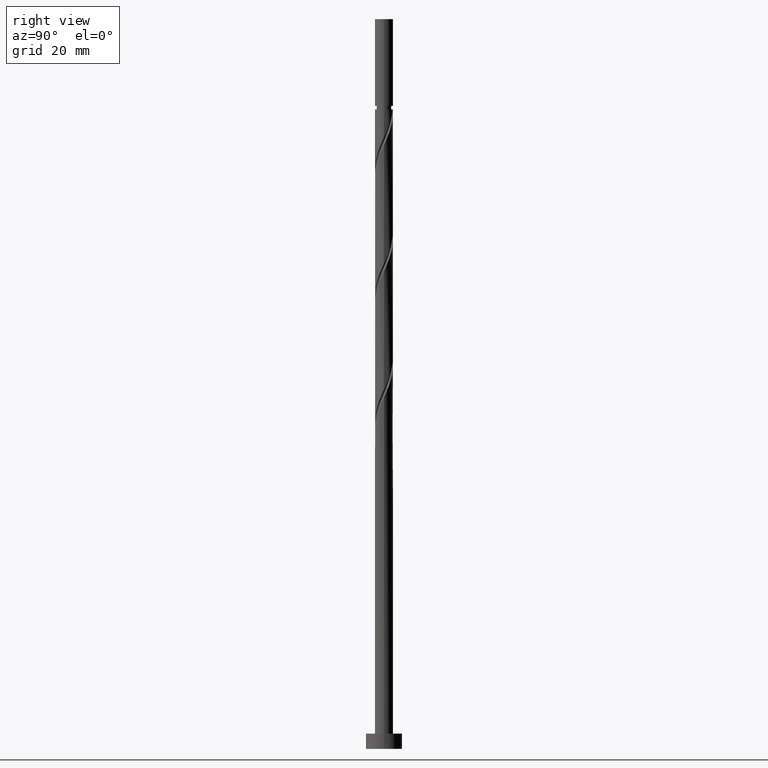
[diagram: clean part render]
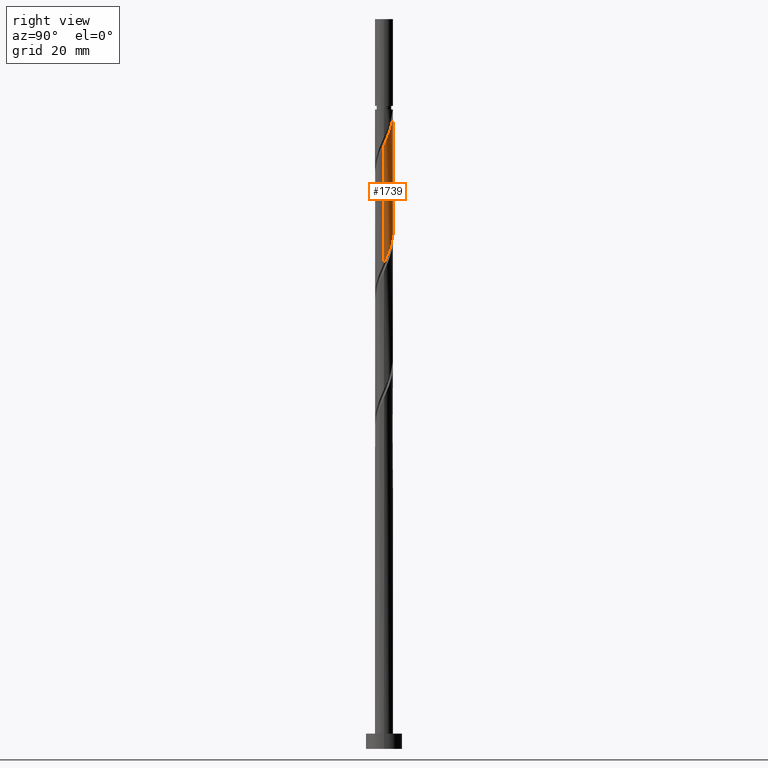
[diagram: same view with one face highlighted and labeled with its STEP entity id]
A machine part, right view. The second image highlights one B-rep face of the part: STEP entity #1739.
In plain terms, the highlighted cylindrical surface (edge-blend (fillet) strip) has radius 3 mm, axis along (-0, -0, -1).
Its self-contained STEP definition (entity closure, byte-faithful):
#7 = VERTEX_POINT ( 'NONE', #246 ) ;
#56 = CARTESIAN_POINT ( 'NONE',  ( 1.612492905673893251, 2.555886599839282347, 167.1045357383551675 ) ) ;
#71 = CARTESIAN_POINT ( 'NONE',  ( 2.960644198141480388, 0.4843407189274799851, 161.4955613793808027 ) ) ;
#83 = CARTESIAN_POINT ( 'NONE',  ( 2.901834587494009909, 0.8438280090812962930, 162.2968434306628751 ) ) ;
#92 = CARTESIAN_POINT ( 'NONE',  ( -2.846604600309526667, 0.9470175550097439388, 179.1237665075859695 ) ) ;
#101 = CARTESIAN_POINT ( 'NONE',  ( 2.731615850633954068, 1.292657931028937224, 202.3609459947654443 ) ) ;
#107 = CARTESIAN_POINT ( 'NONE',  ( 2.846604600309533772, 0.9470175550097428285, 201.5596639434834572 ) ) ;
#126 = CARTESIAN_POINT ( 'NONE',  ( 3.000000000000005329, 0.1193193910103004934, 199.6946309319424131 ) ) ;
#142 = DIRECTION ( 'NONE',  ( -0.000000000000000000, -0.000000000000000000, -1.000000000000000000 ) ) ;
#145 = ORIENTED_EDGE ( 'NONE', *, *, #348, .T. ) ;
#150 = CARTESIAN_POINT ( 'NONE',  ( 0.000000000000000000, 0.000000000000000000, 211.1750485588680135 ) ) ;
#188 = CARTESIAN_POINT ( 'NONE',  ( 0.5969924622639737333, 2.939999999999999503, 169.5083818922013279 ) ) ;
#196 = CARTESIAN_POINT ( 'NONE',  ( 2.615571287713475357, 1.513762372691140667, 163.8994075332270199 ) ) ;
#204 = CARTESIAN_POINT ( 'NONE',  ( -2.537251308848757603, 1.600736016882629453, 177.5212024050218247 ) ) ;
#246 = CARTESIAN_POINT ( 'NONE',  ( -2.999999999999987121, 0.000000000000000000, 211.1750485588680135 ) ) ;
#247 = CARTESIAN_POINT ( 'NONE',  ( 2.342886767063573128, 1.908814102736323237, 203.9635100973295323 ) ) ;
#249 = ORIENTED_EDGE ( 'NONE', *, *, #1171, .F. ) ;
#262 = CARTESIAN_POINT ( 'NONE',  ( 0.000000000000000000, 0.000000000000000000, 241.0000000000000000 ) ) ;
#273 = LINE ( 'NONE', #675, #561 ) ;
#322 = AXIS2_PLACEMENT_3D ( 'NONE', #262, #975, #815 ) ;
#344 = CARTESIAN_POINT ( 'NONE',  ( 2.177300491905830082, 2.095722369502523996, 165.5019716357910511 ) ) ;
#348 = EDGE_CURVE ( 'NONE', #1135, #1563, #966, .T. ) ;
#368 = CARTESIAN_POINT ( 'NONE',  ( 0.2400118315905271915, 3.012488008736831979, 170.3096639434834287 ) ) ;
#401 = CARTESIAN_POINT ( 'NONE',  ( -3.000000000000000000, -1.794712623994405280E-16, 181.2529704347598738 ) ) ;
#407 = AXIS2_PLACEMENT_3D ( 'NONE', #150, #142, #1837 ) ;
#467 = ORIENTED_EDGE ( 'NONE', *, *, #647, .F. ) ;
#479 = ORIENTED_EDGE ( 'NONE', *, *, #1495, .T. ) ;
#496 = CIRCLE ( 'NONE', #407, 2.999999999999987121 ) ;
#550 = CARTESIAN_POINT ( 'NONE',  ( 2.080442193850961186, 2.161425519892977931, 204.7647921486116616 ) ) ;
#559 = CARTESIAN_POINT ( 'NONE',  ( 0.4878980450008975067, 2.982389173091093859, 208.7712024050218815 ) ) ;
#561 = VECTOR ( 'NONE', #1242, 1000.000000000000000 ) ;
#569 = CARTESIAN_POINT ( 'NONE',  ( 3.000000000000004441, 2.422862042392428676E-15, 199.4304600163094676 ) ) ;
#595 =( BOUNDED_CURVE ( )  B_SPLINE_CURVE ( 2, ( #1486, #1765, #1630, #1327, #92, #651, #204, #784, #917, #1335, #1351, #1342, #803, #1751, #627, #368, #188, #1613, #1773, #56, #791, #344, #1366, #196, #944, #83, #71, #1225, #768 ),
 .UNSPECIFIED., .F., .T. ) 
 B_SPLINE_CURVE_WITH_KNOTS ( ( 3, 2, 2, 2, 2, 2, 2, 2, 2, 2, 2, 2, 2, 2, 3 ),
 ( 0.4295271625973829943, 0.4326923076923077094, 0.4423076923076922906, 0.4519230769230769273, 0.4615384615384615641, 0.4711538461538461453, 0.4807692307692307820, 0.4903846153846153633, 0.5000000000000000000, 0.5096153846153845812, 0.5192307692307692735, 0.5288461538461538547, 0.5384615384615384359, 0.5480769230769231282, 0.5545271625973834384 ),
 .UNSPECIFIED. ) 
 CURVE ( )  GEOMETRIC_REPRESENTATION_ITEM ( )  RATIONAL_B_SPLINE_CURVE ( ( 0.9061636035682814061, 0.9069090390690700554, 0.9090909090909268242, 0.9024626128164302541, 0.9090909090909268242, 0.9024626128164302541, 0.9090909090909268242, 0.9024626128164302541, 0.9090909090909268242, 0.9024626128164302541, 0.9090909090909268242, 0.9024626128164302541, 0.9090909090909268242, 0.9024626128164302541, 0.9090909090909268242, 0.9024626128164302541, 0.9090909090909268242, 0.9024626128164302541, 0.9090909090909268242, 0.9024626128164302541, 0.9090909090909268242, 0.9024626128164302541, 0.9090909090909268242, 0.9024626128164302541, 0.9090909090909268242, 0.9024626128164302541, 0.9090909090909268242, 0.9046444828382866898, 0.9061636035682816281 ) ) 
 REPRESENTATION_ITEM ( '' )  );
#627 = CARTESIAN_POINT ( 'NONE',  ( -0.1239431067051839502, 2.997438590913959366, 171.1109459947654159 ) ) ;
#647 = EDGE_CURVE ( 'NONE', #1257, #1563, #595, .T. ) ;
#651 = CARTESIAN_POINT ( 'NONE',  ( -2.731615850633947851, 1.292657931028936558, 178.3224844563039255 ) ) ;
#668 = CARTESIAN_POINT ( 'NONE',  ( -0.5969924622639475320, 2.940000000000004388, 211.1750485588678998 ) ) ;
#675 = CARTESIAN_POINT ( 'NONE',  ( -3.000000000000000444, 0.000000000000000000, 241.0000000000000000 ) ) ;
#755 = VERTEX_POINT ( 'NONE', #1646 ) ;
#768 = CARTESIAN_POINT ( 'NONE',  ( 2.999999999999999556, 4.531649375585872302E-15, 160.4196371014264741 ) ) ;
#784 = CARTESIAN_POINT ( 'NONE',  ( -2.342886767063567355, 1.908814102736321683, 176.7199203537398091 ) ) ;
#791 = CARTESIAN_POINT ( 'NONE',  ( 1.894896698789862555, 2.325804484670902283, 166.3032536870730951 ) ) ;
#803 = CARTESIAN_POINT ( 'NONE',  ( -0.8376755528274979490, 2.880676946169970165, 172.7135100973295039 ) ) ;
#815 = DIRECTION ( 'NONE',  ( -1.000000000000000000, 0.000000000000000000, 0.000000000000000000 ) ) ;
#819 = EDGE_CURVE ( 'NONE', #1135, #755, #1348, .T. ) ;
#824 = CYLINDRICAL_SURFACE ( 'NONE', #322, 3.000000000000000444 ) ;
#829 = CARTESIAN_POINT ( 'NONE',  ( 1.502725340646227536, 2.596500828149244544, 206.3673562511757211 ) ) ;
#917 = CARTESIAN_POINT ( 'NONE',  ( -2.080442193850956301, 2.161425519892975267, 175.9186383024576799 ) ) ;
#939 = CARTESIAN_POINT ( 'NONE',  ( 2.999999999999999556, 4.531649375585873091E-15, 160.4196371014264741 ) ) ;
#944 = CARTESIAN_POINT ( 'NONE',  ( 2.758702937603741745, 1.178795190886219535, 163.0981254819449191 ) ) ;
#966 = LINE ( 'NONE', #1522, #1227 ) ;
#975 = DIRECTION ( 'NONE',  ( -0.000000000000000000, -0.000000000000000000, -1.000000000000000000 ) ) ;
#1115 = CARTESIAN_POINT ( 'NONE',  ( 0.8376755528275019458, 2.880676946169974606, 207.9699203537398375 ) ) ;
#1135 = VERTEX_POINT ( 'NONE', #1196 ) ;
#1136 = CARTESIAN_POINT ( 'NONE',  ( 2.990523579387033948, 0.2382618751084423503, 199.9570998409193123 ) ) ;
#1171 = EDGE_CURVE ( 'NONE', #7, #1257, #273, .T. ) ;
#1196 = CARTESIAN_POINT ( 'NONE',  ( 3.000000000000004441, 2.422862042392428676E-15, 199.4304600163094676 ) ) ;
#1225 = CARTESIAN_POINT ( 'NONE',  ( 3.000000000000000888, 0.2437693156111304382, 160.9593378387748430 ) ) ;
#1227 = VECTOR ( 'NONE', #1795, 1000.000000000000000 ) ;
#1229 = FACE_OUTER_BOUND ( 'NONE', #1429, .T. ) ;
#1242 = DIRECTION ( 'NONE',  ( -0.000000000000000000, -0.000000000000000000, -1.000000000000000000 ) ) ;
#1245 = CARTESIAN_POINT ( 'NONE',  ( -0.2400118315905380717, 3.012488008736836420, 210.3737665075860548 ) ) ;
#1255 = CARTESIAN_POINT ( 'NONE',  ( 2.537251308848762932, 1.600736016882631230, 203.1622280460475167 ) ) ;
#1257 = VERTEX_POINT ( 'NONE', #401 ) ;
#1265 = CARTESIAN_POINT ( 'NONE',  ( 1.817997620638351242, 2.414036937049630183, 205.5660741998936203 ) ) ;
#1327 = CARTESIAN_POINT ( 'NONE',  ( -2.961593349985107260, 0.6013771789905504317, 179.9250485588679567 ) ) ;
#1329 = ORIENTED_EDGE ( 'NONE', *, *, #819, .F. ) ;
#1335 = CARTESIAN_POINT ( 'NONE',  ( -1.817997620638345913, 2.414036937049628850, 175.1173562511756359 ) ) ;
#1342 = CARTESIAN_POINT ( 'NONE',  ( -1.187453060654100723, 2.778964719248850468, 173.5147921486115479 ) ) ;
#1348 =( BOUNDED_CURVE ( )  B_SPLINE_CURVE ( 2, ( #569, #126, #1136, #1549, #107, #101, #1255, #247, #550, #1265, #829, #1824, #1115, #559, #1814, #1245, #668 ),
 .UNSPECIFIED., .F., .T. ) 
 B_SPLINE_CURVE_WITH_KNOTS ( ( 3, 2, 2, 2, 2, 2, 2, 2, 3 ),
 ( 0.6795271625973832164, 0.6826923076923077094, 0.6923076923076924016, 0.7019230769230769829, 0.7115384615384616751, 0.7211538461538463674, 0.7307692307692310596, 0.7403846153846157518, 0.7500000000000003331 ),
 .UNSPECIFIED. ) 
 CURVE ( )  GEOMETRIC_REPRESENTATION_ITEM ( )  RATIONAL_B_SPLINE_CURVE ( ( 0.9061636035682882895, 0.9069090390690768277, 0.9090909090909334855, 0.9024626128164370265, 0.9090909090909334855, 0.9024626128164370265, 0.9090909090909334855, 0.9024626128164370265, 0.9090909090909334855, 0.9024626128164370265, 0.9090909090909334855, 0.9024626128164370265, 0.9090909090909334855, 0.9024626128164370265, 0.9090909090909334855, 0.9024626128164368044, 0.9090909090909337076 ) ) 
 REPRESENTATION_ITEM ( '' )  );
#1351 = CARTESIAN_POINT ( 'NONE',  ( -1.502725340646222874, 2.596500828149240547, 174.3160741998935919 ) ) ;
#1366 = CARTESIAN_POINT ( 'NONE',  ( 2.396435889809652053, 1.804742371096831999, 164.7006895845090071 ) ) ;
#1429 = EDGE_LOOP ( 'NONE', ( #1329, #145, #467, #249, #479 ) ) ;
#1486 = CARTESIAN_POINT ( 'NONE',  ( -3.000000000000000000, -1.794712623994405526E-16, 181.2529704347598738 ) ) ;
#1495 = EDGE_CURVE ( 'NONE', #7, #755, #496, .T. ) ;
#1522 = CARTESIAN_POINT ( 'NONE',  ( 3.000000000000000444, 3.673940397442060361E-16, 241.0000000000000000 ) ) ;
#1549 = CARTESIAN_POINT ( 'NONE',  ( 2.961593349985112145, 0.6013771789905504317, 200.7583818922013279 ) ) ;
#1563 = VERTEX_POINT ( 'NONE', #939 ) ;
#1613 = CARTESIAN_POINT ( 'NONE',  ( 0.9539730929374208301, 2.867511991263166582, 168.7070998409193123 ) ) ;
#1630 = CARTESIAN_POINT ( 'NONE',  ( -2.990523579387028619, 0.2382618751084444042, 180.7263306101500007 ) ) ;
#1646 = CARTESIAN_POINT ( 'NONE',  ( -0.5969924622639475320, 2.940000000000004388, 211.1750485588679283 ) ) ;
#1739 = ADVANCED_FACE ( 'NONE', ( #1229 ), #824, .T. ) ;
#1751 = CARTESIAN_POINT ( 'NONE',  ( -0.4878980450008948977, 2.982389173091088530, 171.9122280460474599 ) ) ;
#1765 = CARTESIAN_POINT ( 'NONE',  ( -3.000000000000000000, 0.1193193910102944844, 180.9887995191268999 ) ) ;
#1773 = CARTESIAN_POINT ( 'NONE',  ( 1.283232999305657929, 2.711699295551223354, 167.9058177896372115 ) ) ;
#1795 = DIRECTION ( 'NONE',  ( -0.000000000000000000, -0.000000000000000000, -1.000000000000000000 ) ) ;
#1814 = CARTESIAN_POINT ( 'NONE',  ( 0.1239431067051874336, 2.997438590913966028, 209.5724844563039255 ) ) ;
#1824 = CARTESIAN_POINT ( 'NONE',  ( 1.187453060654103831, 2.778964719248856685, 207.1686383024577367 ) ) ;
#1837 = DIRECTION ( 'NONE',  ( -1.000000000000000000, 0.000000000000000000, 0.000000000000000000 ) ) ;